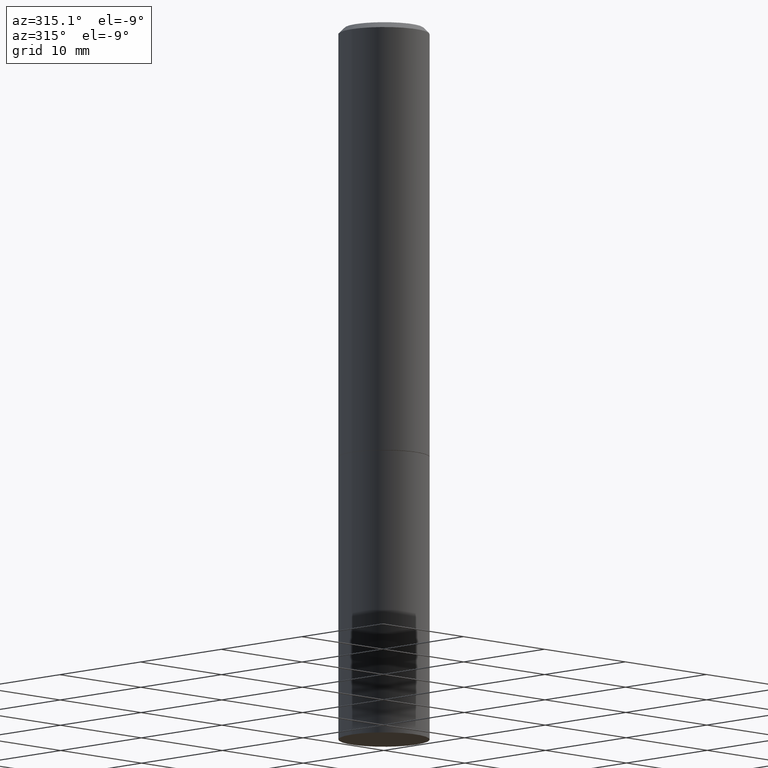
[diagram: clean part render]
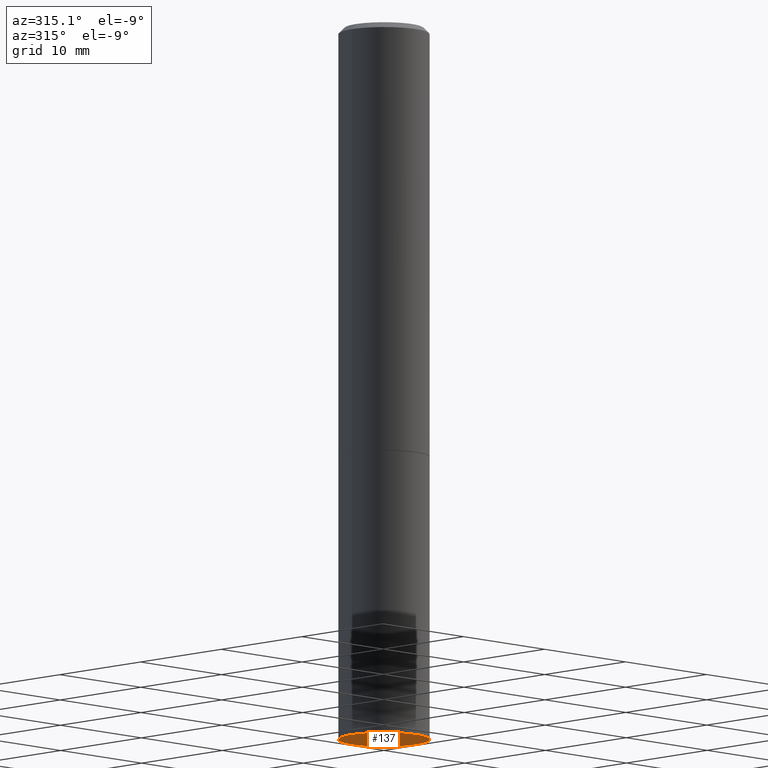
[diagram: same view with one face highlighted and labeled with its STEP entity id]
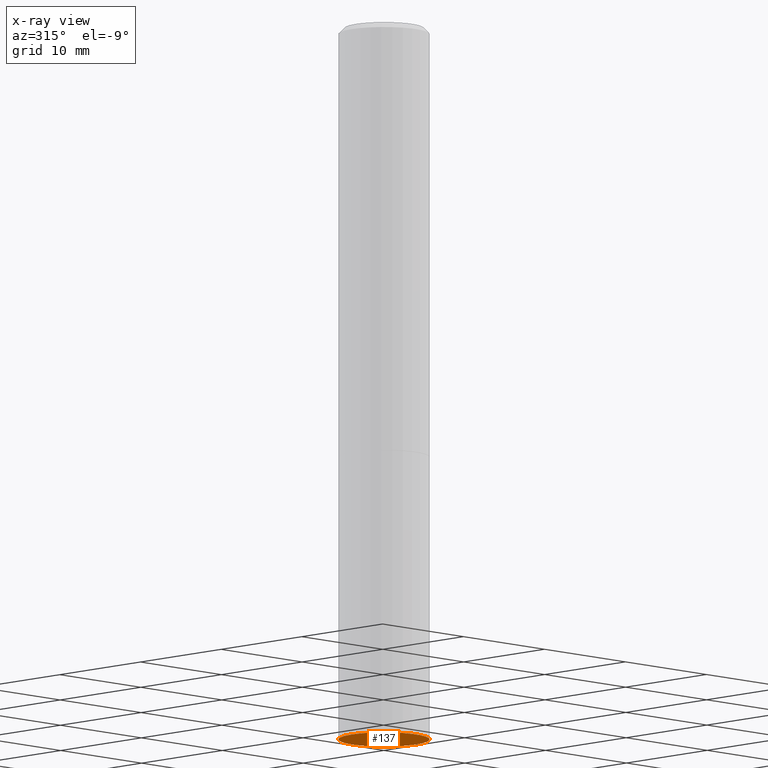
[diagram: x-ray of the same camera — body ghosted, the highlighted face saturated]
A machine part, auxiliary view. The second image highlights one B-rep face of the part: STEP entity #137.
The next image is the same camera in x-ray: the body ghosted, the highlighted face saturated — about 0% of this face is hidden behind the body in this view.
In plain terms, the highlighted planar face has unit normal (0, -0, -1).
Its self-contained STEP definition (entity closure, byte-faithful):
#2 = CARTESIAN_POINT ( 'NONE',  ( 6.065496279980994755E-29, -8.659921164732655335E-15, -2.480300000000000171 ) ) ;
#13 = PLANE ( 'NONE',  #25 ) ;
#25 = AXIS2_PLACEMENT_3D ( 'NONE', #225, #199, #46 ) ;
#31 = ORIENTED_EDGE ( 'NONE', *, *, #222, .F. ) ;
#36 = DIRECTION ( 'NONE',  ( 1.000000000000000000, -6.982962677686261977E-15, 0.000000000000000000 ) ) ;
#46 = DIRECTION ( 'NONE',  ( -1.000000000000000000, 6.982962677686265922E-15, -4.876176775795935793E-29 ) ) ;
#51 = CIRCLE ( 'NONE', #249, 0.1575000000000000011 ) ;
#52 = AXIS2_PLACEMENT_3D ( 'NONE', #291, #103, #123 ) ;
#72 = CARTESIAN_POINT ( 'NONE',  ( 0.1575000000000000011, -9.759737786468242027E-15, -2.480300000000000171 ) ) ;
#103 = DIRECTION ( 'NONE',  ( -2.445468806185136597E-29, 3.491481338843145583E-15, 1.000000000000000000 ) ) ;
#105 = CARTESIAN_POINT ( 'NONE',  ( -0.1575000000000000011, -5.822483814998842744E-15, -2.480300000000000171 ) ) ;
#123 = DIRECTION ( 'NONE',  ( 1.000000000000000000, -6.982962677686261977E-15, 0.000000000000000000 ) ) ;
#133 = EDGE_LOOP ( 'NONE', ( #305, #31 ) ) ;
#137 = ADVANCED_FACE ( 'NONE', ( #269 ), #13, .T. ) ;
#199 = DIRECTION ( 'NONE',  ( 2.438088387897960049E-29, -3.491481338843145188E-15, -1.000000000000000000 ) ) ;
#222 = EDGE_CURVE ( 'NONE', #364, #357, #51, .T. ) ;
#225 = CARTESIAN_POINT ( 'NONE',  ( 1.099816621735647434E-15, 0.1574999999999913136, -2.480300000000001059 ) ) ;
#228 = DIRECTION ( 'NONE',  ( -2.445468806185136597E-29, 3.491481338843145583E-15, 1.000000000000000000 ) ) ;
#240 = CIRCLE ( 'NONE', #52, 0.1575000000000000011 ) ;
#249 = AXIS2_PLACEMENT_3D ( 'NONE', #2, #228, #36 ) ;
#269 = FACE_OUTER_BOUND ( 'NONE', #133, .T. ) ;
#291 = CARTESIAN_POINT ( 'NONE',  ( 6.065496279980994755E-29, -8.659921164732655335E-15, -2.480300000000000171 ) ) ;
#305 = ORIENTED_EDGE ( 'NONE', *, *, #340, .F. ) ;
#340 = EDGE_CURVE ( 'NONE', #357, #364, #240, .T. ) ;
#357 = VERTEX_POINT ( 'NONE', #72 ) ;
#364 = VERTEX_POINT ( 'NONE', #105 ) ;